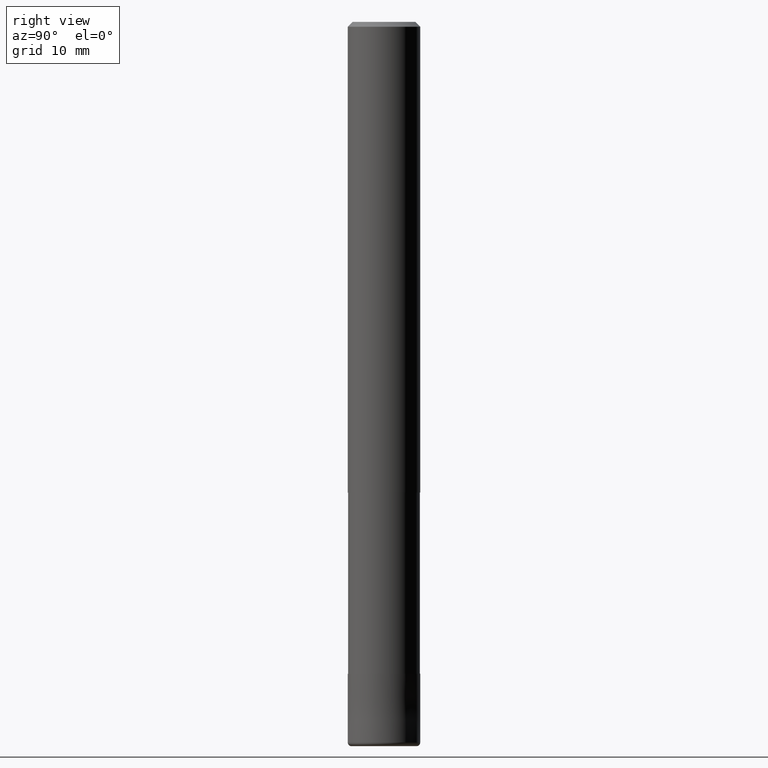
[diagram: clean part render]
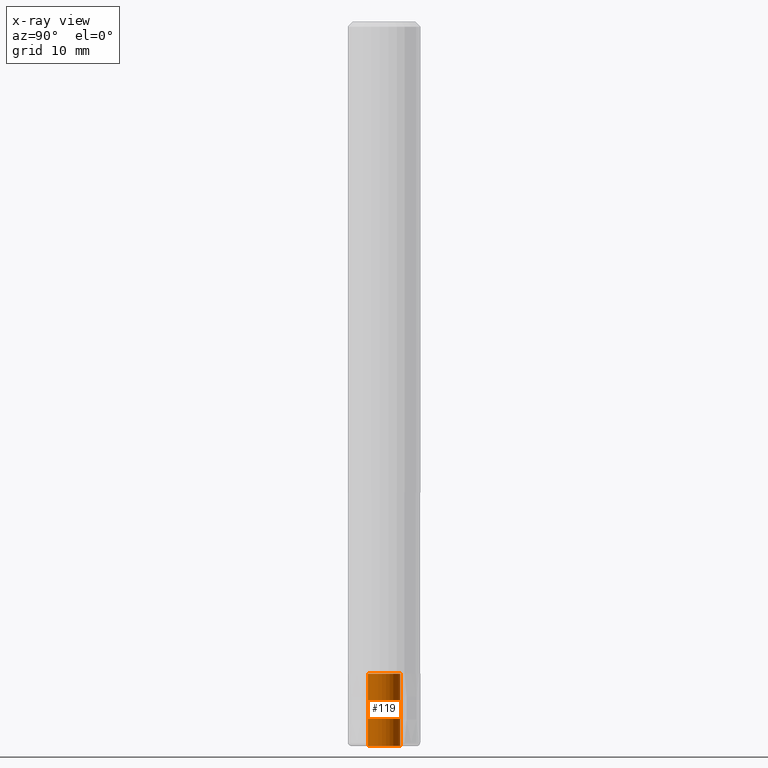
[diagram: x-ray — body ghosted, one internal face saturated and labeled with its STEP entity id]
A machine part, right view, then the same camera in x-ray: the body is ghosted and one INTERNAL B-rep face — a face not visible from any outside direction — is saturated and labeled: STEP entity #119.
In plain terms, the highlighted cylindrical surface (edge-blend (fillet) strip) has radius 1.35 mm, axis along (-0, -0, 1).
Its self-contained STEP definition (entity closure, byte-faithful):
#119=ADVANCED_FACE('',(#306),#307,.F.);
#121=VERTEX_POINT('',#309);
#141=EDGE_CURVE('',#121,#273,#329,.T.);
#203=VERTEX_POINT('',#399);
#205=EDGE_CURVE('',#207,#203,#401,.T.);
#207=VERTEX_POINT('',#403);
#253=EDGE_CURVE('',#121,#207,#458,.T.);
#259=EDGE_CURVE('',#203,#273,#466,.T.);
#273=VERTEX_POINT('',#482);
#306=FACE_OUTER_BOUND('',#509,.T.);
#307=CYLINDRICAL_SURFACE('',#510,1.35);
#309=CARTESIAN_POINT('',(0.0,1.35,-54.0));
#329=CIRCLE('',#539,1.35);
#399=CARTESIAN_POINT('',(1.65321857766021E-016,-1.35,-60.0));
#401=CIRCLE('',#633,1.35);
#403=CARTESIAN_POINT('',(0.0,1.35,-60.0));
#458=LINE('',#699,#700);
#466=LINE('',#710,#711);
#482=CARTESIAN_POINT('',(1.65321857766021E-016,-1.35,-54.0));
#509=EDGE_LOOP('',(#748,#749,#750,#751));
#510=AXIS2_PLACEMENT_3D('',#752,#753,#754);
#539=AXIS2_PLACEMENT_3D('',#772,#773,#774);
#633=AXIS2_PLACEMENT_3D('',#867,#868,#869);
#699=CARTESIAN_POINT('',(-1.65321857766021E-016,1.35,-57.0));
#700=VECTOR('',#944,1.0);
#710=CARTESIAN_POINT('',(1.65321857766021E-016,-1.35,-57.0));
#711=VECTOR('',#956,1.0);
#748=ORIENTED_EDGE('',*,*,#253,.T.);
#749=ORIENTED_EDGE('',*,*,#205,.T.);
#750=ORIENTED_EDGE('',*,*,#259,.T.);
#751=ORIENTED_EDGE('',*,*,#141,.F.);
#752=CARTESIAN_POINT('',(0.0,0.0,-57.0));
#753=DIRECTION('',(-0.0,-0.0,1.0));
#754=DIRECTION('',(0.0,1.0,0.0));
#772=CARTESIAN_POINT('',(0.0,0.0,-54.0));
#773=DIRECTION('',(0.0,0.0,-1.0));
#774=DIRECTION('',(0.0,1.0,0.0));
#867=CARTESIAN_POINT('',(0.0,0.0,-60.0));
#868=DIRECTION('',(0.0,0.0,-1.0));
#869=DIRECTION('',(0.0,1.0,0.0));
#944=DIRECTION('',(0.0,-0.0,-1.0));
#956=DIRECTION('',(0.0,-0.0,1.0));